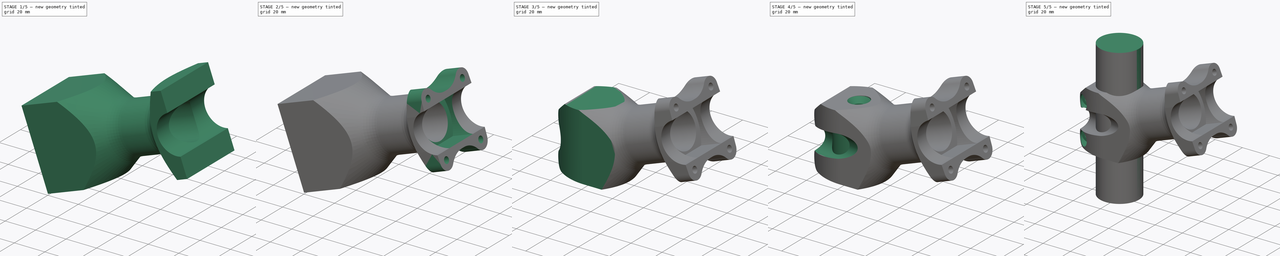
[diagram: build sequence overview — one tinted view per stage of 5, left to right]
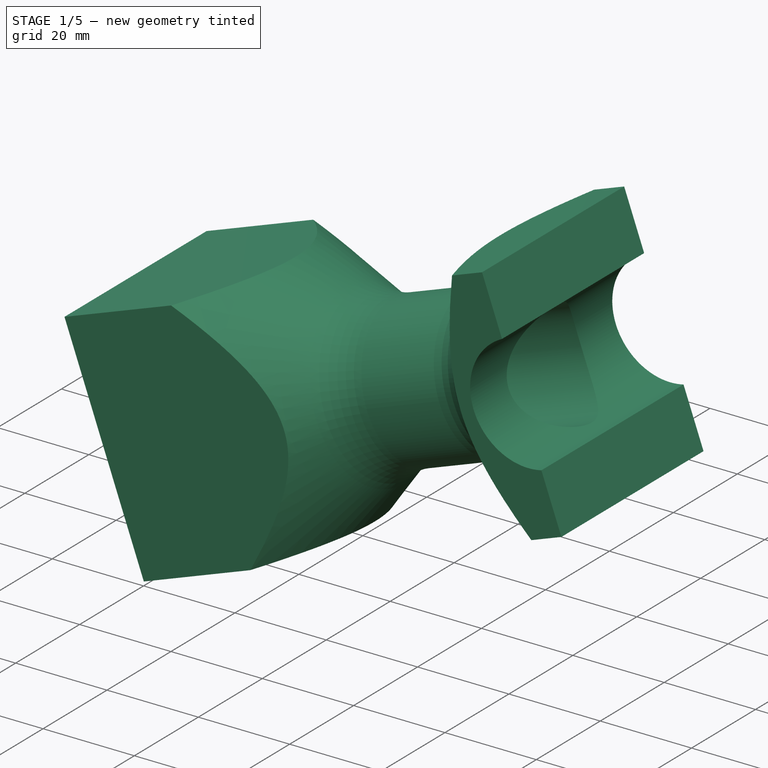
[diagram: stage 1 of 5 — iso view after this stage's code; geometry added in this stage tinted green]
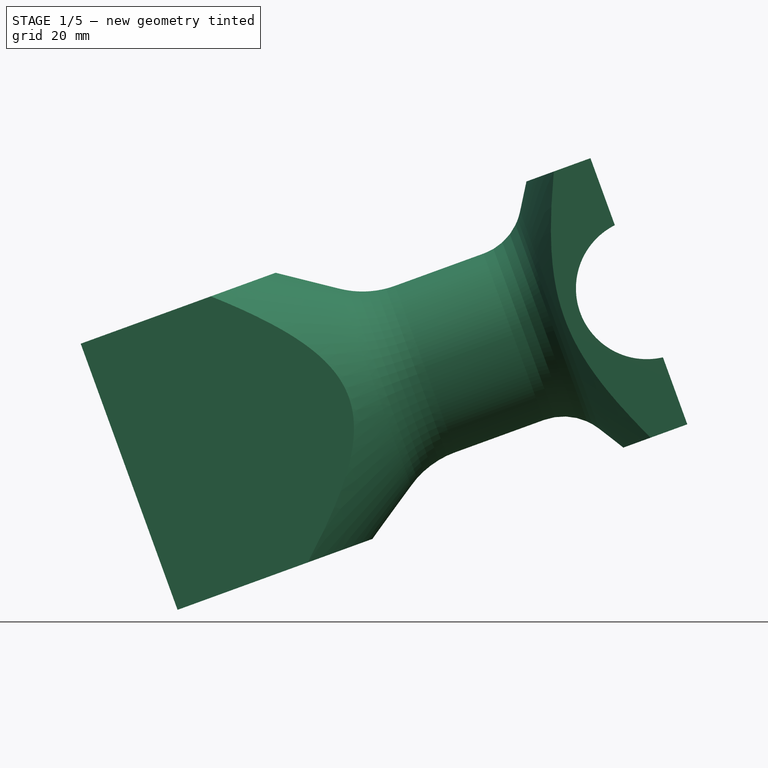
[diagram: stage 1 of 5 — front view after this stage's code; geometry added in this stage tinted green]
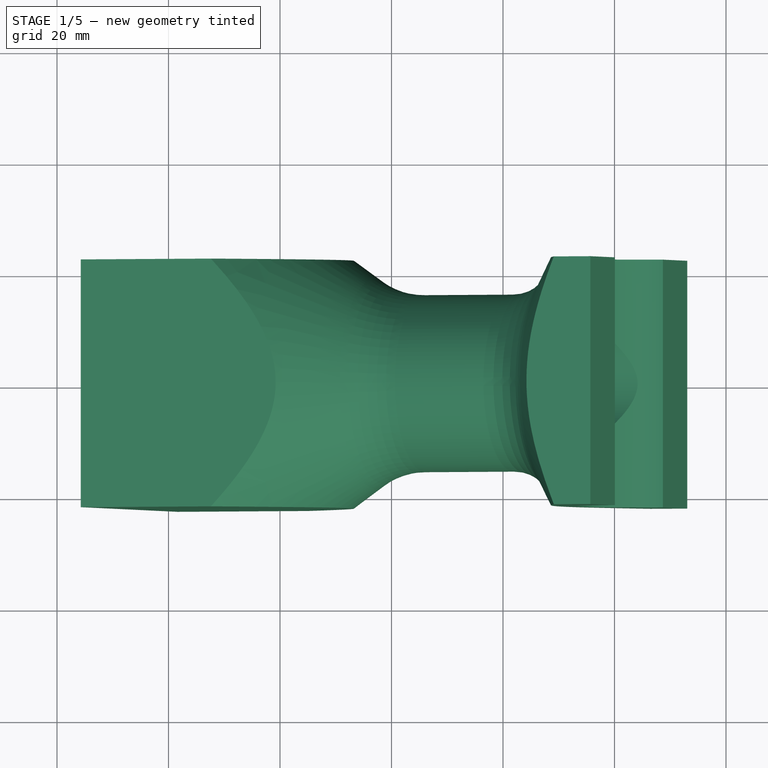
[diagram: stage 1 of 5 — top view after this stage's code; geometry added in this stage tinted green]
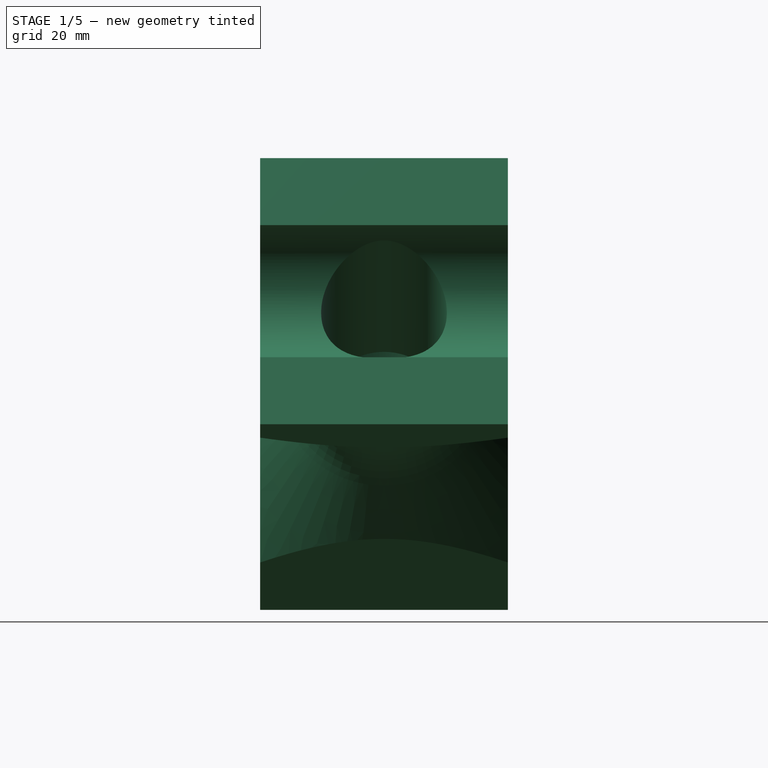
[diagram: stage 1 of 5 — right view after this stage's code; geometry added in this stage tinted green]
FCSTD DOCUMENT  (FreeCAD 0.17R11939 (Git))
Label: stem
License: All rights reserved
LicenseURL: http://en.wikipedia.org/wiki/All_rights_reserved
objects: Sketcher::SketchObject×21, PartDesign::Pocket×14, PartDesign::Mirrored×6, PartDesign::Pad×3, PartDesign::Body×3, App::Part×3, PartDesign::Plane×3, PartDesign::Hole×2, PartDesign::Groove×2, PartDesign::MultiTransform×2, PartDesign::ShapeBinder×1
note: 78 computed .brp shape members not serialized (recipe doc carries the construction recipe); baked Part::Feature solids carry a one-line shape summary decoded from their .brp

FEATURE [PartDesign::Body] Body
  Group = -> [Sketch,Pad]
  Origin = -> Origin
  Tip = -> Pad
FEATURE [App::Part] Part  label="steerer"
  Group = -> [Body]
  License = CC BY 3.0
  LicenseURL = http://creativecommons.org/licenses/by/3.0/
  Origin = -> Origin001
FEATURE [Sketcher::SketchObject] Sketch001
  MapMode = 5
  Placement = pos=(0,0,0) rot=(1,0,0;1.5708rad)
  Support = -> [XZ_Plane003]
  sketch-geometry (2):
    g0: Circle CenterX=65.7785 CenterY=23.9414 CenterZ=0 NormalX=0 NormalY=0 NormalZ=1 Radius=12.7
    g1: LineSegment [constr] StartX=65.7785 StartY=23.9414 StartZ=0 EndX=0 EndY=0 EndZ=0
  constraints (5):
    c: Radius(g0) = 12.7
    c: Distance(g-1,g0) = 70
    c: Coincident(g1,g0)
    c: Coincident(g1,g-1)
    c: Angle(g-1,g1) = 0.349066
FEATURE [PartDesign::Pad] Pad001
  Length = 100
  Length2 = 100
  Midplane = true
  Placement = pos=(0,0,0) rot=(1,0,0;1.5708rad)
  Profile = -> Sketch001
  Type = 0
FEATURE [PartDesign::Body] Body001
  Group = -> [Sketch001,Pad001]
  Origin = -> Origin003
  Tip = -> Pad001
FEATURE [App::Part] Part001  label="handlebar"
  Group = -> [Body001]
  License = CC BY 3.0
  LicenseURL = http://creativecommons.org/licenses/by/3.0/
  Origin = -> Origin002
FEATURE [PartDesign::ShapeBinder] ShapeBinder  label="handlebar_section"
  Placement = pos=(0,0,0) rot=(1,0,0;1.5708rad)
  Support = -> [Pad001]
FEATURE [Sketcher::SketchObject] Sketch002
  ExternalGeometry = -> [ShapeBinder]
  MapMode = 5
  Placement = pos=(0,0,0) rot=(1,0,0;1.5708rad)
  Support = -> [XZ_Plane005]
  sketch-geometry (14):
    g0: LineSegment StartX=-35.7507 StartY=14.0179 StartZ=0 EndX=55.6816 EndY=47.2966 EndZ=0
    g1: LineSegment StartX=55.6816 StartY=47.2966 StartZ=0 EndX=73.0563 EndY=-0.439813 EndZ=0
    g2: LineSegment StartX=73.0563 StartY=-0.439813 StartZ=0 EndX=-18.376 EndY=-33.7184 EndZ=0
    g3: LineSegment StartX=-18.376 StartY=-33.7184 StartZ=0 EndX=-35.7507 EndY=14.0179 EndZ=0
    g4: LineSegment [constr] StartX=0 StartY=0 StartZ=0 EndX=65.7785 EndY=23.9414 EndZ=0
    g5: LineSegment [constr] StartX=14.2875 StartY=-18.6374 StartZ=0 EndX=-14.2875 EndY=-18.6374 EndZ=0
    g6: LineSegment [constr] StartX=-14.2875 StartY=-18.6374 StartZ=0 EndX=-14.2875 EndY=18.6374 EndZ=0
    g7: LineSegment [constr] StartX=14.2875 StartY=-18.6374 StartZ=0 EndX=14.2875 EndY=18.6374 EndZ=0
    g8: LineSegment [constr] StartX=14.2875 StartY=18.6374 StartZ=0 EndX=-14.2875 EndY=18.6374 EndZ=0
    g9: LineSegment [constr] StartX=14.2875 StartY=-8.31483 StartZ=0 EndX=51.3283 EndY=5.16691 EndZ=0
    g10: LineSegment [constr] StartX=14.2875 StartY=18.7153 StartZ=0 EndX=42.641 EndY=29.0351 EndZ=0
    g11: LineSegment [constr] StartX=42.641 StartY=29.0351 StartZ=0 EndX=51.3283 EndY=5.16691 EndZ=0
    g12: GeomPoint X=46.9846 Y=17.101 Z=0
    g13: GeomPoint X=64.3689 Y=23.4284 Z=0
  constraints (42):
    c: Coincident(g0,g1)
    c: Coincident(g1,g2)
    c: Coincident(g2,g3)
    c: Coincident(g3,g0)
    c: Perpendicular(g2,g3)
    c: Perpendicular(g0,g3)
    c: Perpendicular(g1,g2)
    c: Distance(g3) = 50.8
    c: Coincident(g4,g-1)
    c: Parallel(g2,g4)
    c: Horizontal(g5)
    c: Coincident(g6,g5)
    c: Vertical(g6)
    c: Coincident(g7,g5)
    c: Vertical(g7)
    c: Coincident(g8,g7)
    c: Coincident(g8,g6)
    c: Horizontal(g8)
    c: Distance(g8) = 28.575
    c: Symmetric(g6,g7,g-2)
    c: Distance(g5,g2) = 3
    c: Distance(g6,g0) = 3
    c: Distance(g7) = 37.2747
    c: PointOnObject(g9,g7)
    c: PointOnObject(g10,g7)
    c: Coincident(g11,g10)
    c: Coincident(g11,g9)
    c: Parallel(g10,g4)
    c: Parallel(g9,g4)
    c: Perpendicular(g4,g11)
    c: PointOnObject(g12,g11)
    c: Symmetric(g10,g9,g12)
    c: PointOnObject(g12,g4)
    c: Coincident(g4,g-3)
    c: Distance(g11) = 25.4
    c: Symmetric(g1,g0,g4)
    c: Distance(g-1,g12) = 50
    c: Distance(g5,g3) = 9
    c: PointOnObject(g13,g4)
    c: PointOnObject(g13,g1)
    c: Distance(g13,g4) = 1.5
    c: Distance(g0) = 97.3002
FEATURE [PartDesign::Pad] Pad002  label="stock_bar"
  Length = 44.45
  Length2 = 100
  Midplane = true
  Placement = pos=(0,0,0) rot=(1,0,0;1.5708rad)
  Profile = -> Sketch002
  Type = 0
FEATURE [Sketcher::SketchObject] Sketch003
  MapMode = 5
  Placement = pos=(64.3689,0,23.4284) rot=(0.573576,0,0.819152;3.14159rad)
  Support = -> [Pad002]
  sketch-geometry (1):
    g0: Circle CenterX=0 CenterY=0 CenterZ=0 NormalX=0 NormalY=0 NormalZ=1 Radius=2.6743
  constraints (1):
    c: Coincident(g0,g-1)
FEATURE [PartDesign::Hole] Hole
  BaseFeature = -> Pad002
  Depth = 70
  DepthType = 0
  Diameter = 24
  DrillPoint = 1
  DrillPointAngle = 118
  HoleCutCountersinkAngle = 90
  HoleCutDepth = 0
  HoleCutDiameter = 0
  HoleCutType = 0
  ModelActualThread = false
  Placement = pos=(0,0,0) rot=(1,0,0;1.5708rad)
  Profile = -> Sketch003
  Tapered = false
  TaperedAngle = 90
  ThreadAngle = 0
  ThreadClass = 0
  ThreadCutOffInner = 0
  ThreadCutOffOuter = 0
  ThreadDirection = 0
  ThreadFit = 0
  ThreadPitch = 0
  ThreadSize = 0
  ThreadType = 0
  Threaded = false
FEATURE [PartDesign::Plane] DatumPlane
  MapMode = 5
  Placement = pos=(0,0.005,0) rot=(1,0,0;1.5708rad)
  Support = -> [Hole]
  superPlacement = pos=(0,0,-22.23) rot=(0,0,1;0rad)
FEATURE [Sketcher::SketchObject] Sketch004
  ExternalGeometry = -> [Hole,ShapeBinder]
  MapMode = 5
  Placement = pos=(0,0.005,0) rot=(1,0,0;1.5708rad)
  Support = -> [DatumPlane]
  sketch-geometry (13):
    g0: LineSegment StartX=20.6421 StartY=24.4069 StartZ=0 EndX=36.4951 EndY=30.177 EndZ=0
    g1: LineSegment StartX=49.1056 StartY=66.1867 StartZ=0 EndX=-35.4583 EndY=35.4079 EndZ=0
    g2: LineSegment [constr] StartX=0 StartY=0 StartZ=0 EndX=64.3689 EndY=23.4284 EndZ=0
    g3: LineSegment [constr] StartX=53.8444 StartY=19.5978 StartZ=0 EndX=45.1571 EndY=43.4659 EndZ=0
    g4: LineSegment StartX=43.0557 StartY=37.7241 StartZ=0 EndX=49.1056 EndY=66.1867 EndZ=0
    g5: LineSegment StartX=10.6557 StartY=23.8861 StartZ=0 EndX=-35.4583 EndY=35.4079 EndZ=0
    g6: ArcOfCircle CenterX=14.7978 CenterY=40.464 CenterZ=0 NormalX=0 NormalY=0 NormalZ=1 Radius=17.0876 StartAngle=4.46755 EndAngle=5.06145
    g7: ArcOfCircle CenterX=32.9677 CenterY=39.8683 CenterZ=0 NormalX=0 NormalY=0 NormalZ=1 Radius=10.3133 StartAngle=5.06145 EndAngle=6.07375
    g8: LineSegment [constr] StartX=20.6421 StartY=24.4069 StartZ=0 EndX=10.6557 EndY=23.8861 EndZ=0
    g9: LineSegment [constr] StartX=36.4951 StartY=30.177 StartZ=0 EndX=43.0557 EndY=37.7241 EndZ=0
    g10: LineSegment [constr] StartX=56.7675 StartY=44.313 StartZ=0 EndX=-34.6647 EndY=11.0344 EndZ=0
    g11: GeomPoint X=46.243 Y=40.4824 Z=0
    g12: GeomPoint X=43.4239 Y=39.4564 Z=0
  constraints (32):
    c: Coincident(g2,g-1)
    c: Symmetric(g-3,g-3,g2)
    c: Parallel(g-4,g1)
    c: Parallel(g-4,g0)
    c: PointOnObject(g3,g2)
    c: PointOnObject(g3,g-4)
    c: Perpendicular(g-4,g3)
    c: PointOnObject(g3,g-5)
    c: Coincident(g4,g1)
    c: Coincident(g5,g1)
    c: Tangent(g0,g6) = -1.5708
    c: Tangent(g5,g6) = 1.5708
    c: Tangent(g0,g7) = -1.5708
    c: Tangent(g4,g7) = -1.5708
    c: Coincident(g8,g0)
    c: Coincident(g8,g5)
    c: Coincident(g9,g0)
    c: Coincident(g9,g4)
    c: Distance(g8) = 10
    c: Distance(g0,g2) = 15.875
    c: Parallel(g10,g-4)
    c: PointOnObject(g10,g-3)
    c: Distance(g10,g2) = 22.225
    c: Angle(g4,g10) = 2.1293
    c: Distance(g3,g1) = 20
    c: PointOnObject(g11,g10)
    c: PointOnObject(g11,g3)
    c: PointOnObject(g12,g4)
    c: PointOnObject(g12,g10)
    c: Distance(g12,g11) = 3
    c: PointOnObject(g10,g-6)
    c: Distance(g9) = 10
FEATURE [PartDesign::Groove] Groove
  Angle = 360
  Axis = (64.3689,0,23.4284)
  Base = (0,0.005,0)
  BaseFeature = -> Hole
  Placement = pos=(0,0,0) rot=(1,0,0;1.5708rad)
  Profile = -> Sketch004
  ReferenceAxis = -> Sketch004 [Axis0]
FEATURE [Sketcher::SketchObject] Sketch005
  ExternalGeometry = -> [ShapeBinder]
  MapMode = 5
  Placement = pos=(0,0,0) rot=(1,0,0;1.5708rad)
  Support = -> [XZ_Plane005]
  sketch-geometry (1):
    g0: Circle CenterX=65.7785 CenterY=23.9414 CenterZ=0 NormalX=0 NormalY=0 NormalZ=1 Radius=12.7
  constraints (2):
    c: Coincident(g0,g-3)
    c: Equal(g0,g-3)
FEATURE [PartDesign::Pocket] Pocket
  BaseFeature = -> Groove
  Length = 5
  Midplane = true
  Placement = pos=(0,0,0) rot=(1,0,0;1.5708rad)
  Profile = -> Sketch005
  Type = 1
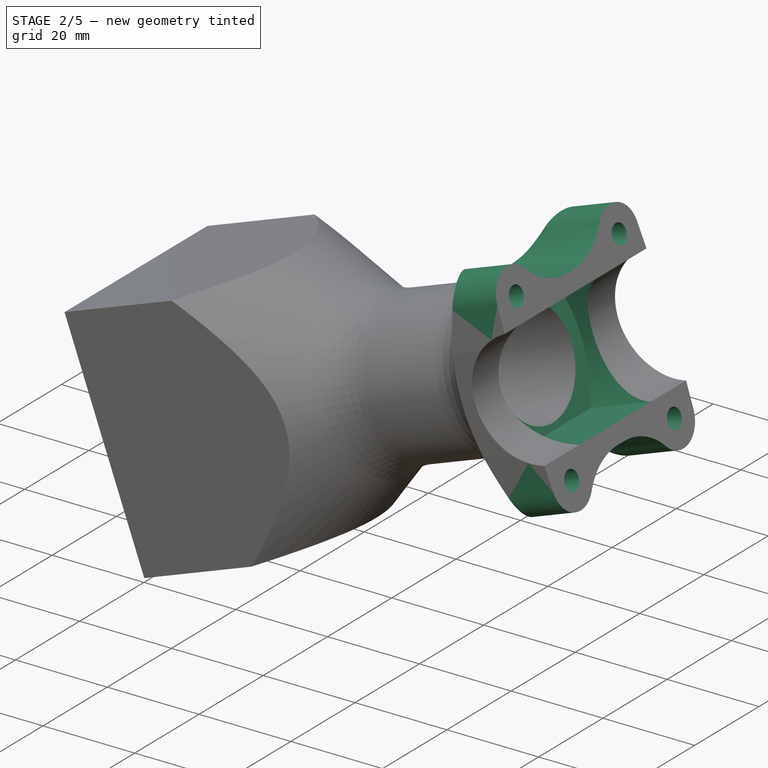
[diagram: stage 2 of 5 — iso view after this stage's code; geometry added in this stage tinted green]
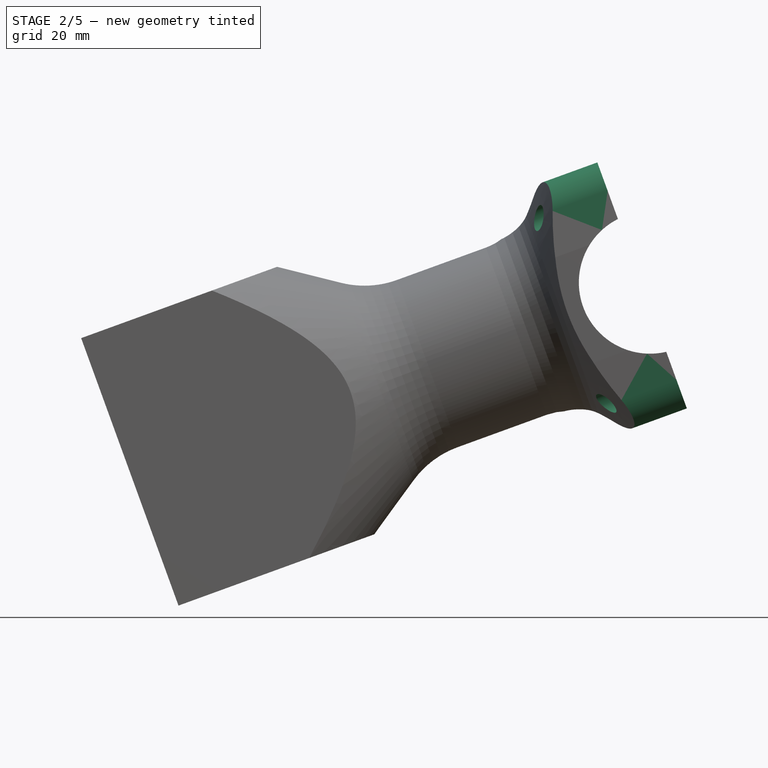
[diagram: stage 2 of 5 — front view after this stage's code; geometry added in this stage tinted green]
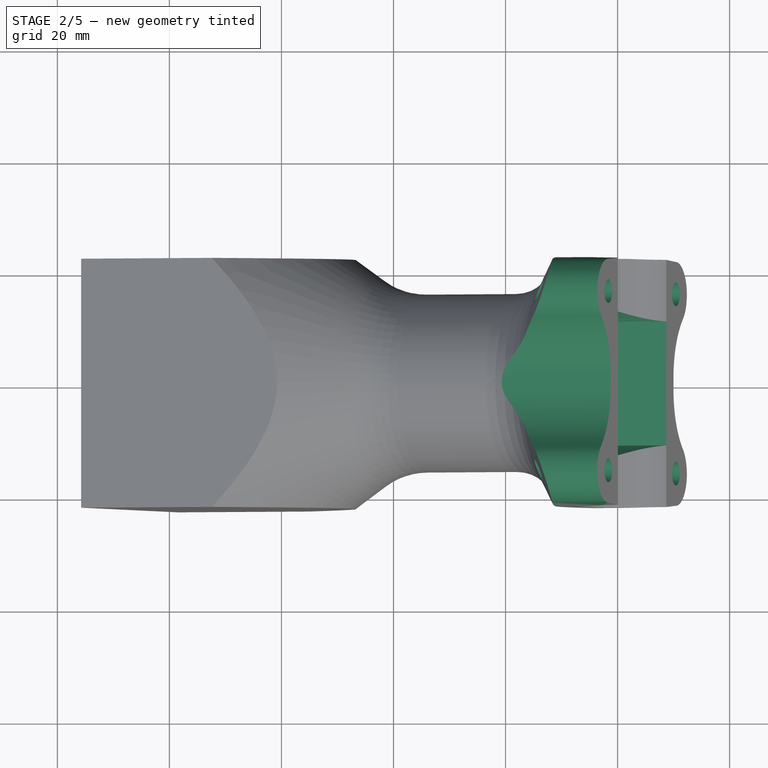
[diagram: stage 2 of 5 — top view after this stage's code; geometry added in this stage tinted green]
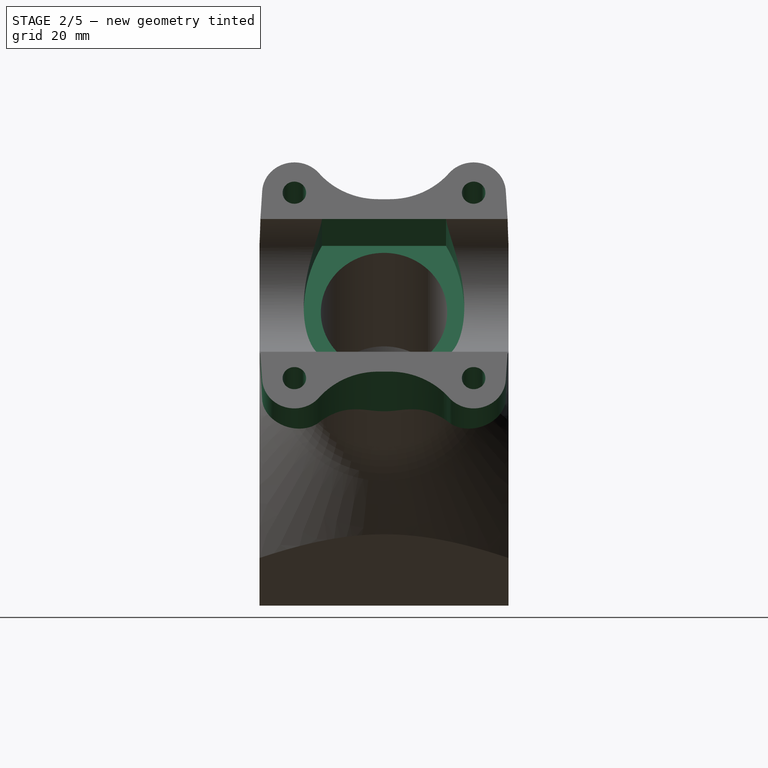
[diagram: stage 2 of 5 — right view after this stage's code; geometry added in this stage tinted green]
FEATURE [Sketcher::SketchObject] Sketch006
  ExternalGeometry = -> [Pocket]
  MapMode = 5
  Placement = pos=(64.3689,0,23.4284) rot=(0.573576,0,0.819152;3.14159rad)
  Support = -> [Pocket]
  sketch-geometry (13):
    g0: LineSegment StartX=10 StartY=22.225 StartZ=0 EndX=10 EndY=32.225 EndZ=0
    g1: LineSegment StartX=10 StartY=32.225 StartZ=0 EndX=40 EndY=32.225 EndZ=0
    g2: LineSegment StartX=40 StartY=32.225 StartZ=0 EndX=40 EndY=0 EndZ=0
    g3: Circle [constr] CenterX=17.6111 CenterY=16 CenterZ=0 NormalX=0 NormalY=0 NormalZ=1 Radius=2.5
    g4: LineSegment [constr] StartX=12.6111 StartY=22.225 StartZ=0 EndX=12.6111 EndY=-22.225 EndZ=0
    g5: LineSegment StartX=10 StartY=22.225 StartZ=0 EndX=17.9612 EndY=21.7393 EndZ=0
    g6: ArcOfCircle CenterX=17.6111 CenterY=16 CenterZ=0 NormalX=0 NormalY=0 NormalZ=1 Radius=5.75 StartAngle=5.41146 EndAngle=7.79305
    g7: LineSegment [constr] StartX=12.6111 StartY=22.225 StartZ=0 EndX=-12.6111 EndY=22.225 EndZ=0
    g8: LineSegment StartX=40 StartY=0 StartZ=0 EndX=16.375 EndY=0 EndZ=0
    g9: ArcOfCircle CenterX=30.2214 CenterY=0.999998 CenterZ=0 NormalX=0 NormalY=0 NormalZ=1 Radius=13.8464 StartAngle=2.26986 EndAngle=3.14159
    g10: Circle [constr] CenterX=0 CenterY=0 CenterZ=0 NormalX=0 NormalY=0 NormalZ=1 Radius=15.875
    g11: LineSegment StartX=16.375 StartY=0 StartZ=0 EndX=16.375 EndY=1 EndZ=0
    g12: LineSegment [constr] StartX=16.375 StartY=0 StartZ=0 EndX=15.875 EndY=0 EndZ=0
  constraints (38):
    c: Vertical(g0)
    c: Coincident(g1,g0)
    c: Horizontal(g1)
    c: Coincident(g2,g1)
    c: Vertical(g2)
    c: Distance(g1) = 30
    c: Distance(g0) = 10
    c: Radius(g3) = 2.5
    c: Distance(g3,g4) = 5
    c: Coincident(g6,g5)
    c: Coincident(g6,g3)
    c: Coincident(g7,g4)
    c: Horizontal(g7)
    c: PointOnObject(g0,g7)
    c: Coincident(g4,g-3)
    c: Coincident(g7,g-7)
    c: Coincident(g0,g5)
    c: Coincident(g4,g-4)
    c: DistanceX(g-2,g0) = 10
    c: Radius(g6) = 5.75
    c: PointOnObject(g2,g-1)
    c: Coincident(g8,g2)
    c: Coincident(g9,g6)
    c: Tangent(g9,g6)
    c: Tangent(g5,g6)
    c: Coincident(g10,g-1)
    c: Radius(g10) = 15.875
    c: Coincident(g11,g8)
    c: Vertical(g11)
    c: Coincident(g9,g11)
    c: Tangent(g9,g11)
    c: Distance(g11) = 1
    c: PointOnObject(g8,g-1)
    c: Coincident(g12,g8)
    c: PointOnObject(g12,g10)
    c: Horizontal(g12)
    c: Distance(g12) = 0.5
    c: DistanceY(g-1,g3) = 16
FEATURE [PartDesign::Pocket] Pocket001  label="face_clamp_profile"
  BaseFeature = -> Pocket
  Length = 30
  Placement = pos=(0,0,0) rot=(1,0,0;1.5708rad)
  Profile = -> Sketch006
  Type = 0
FEATURE [PartDesign::Mirrored] Mirrored
  MirrorPlane = -> Sketch006 [V_Axis]
  Placement = pos=(0,0,0) rot=(1,0,0;1.5708rad)
FEATURE [PartDesign::Mirrored] Mirrored001
  MirrorPlane = -> Sketch006 [H_Axis]
  Placement = pos=(0,0,0) rot=(1,0,0;1.5708rad)
FEATURE [PartDesign::MultiTransform] MultiTransform  label="face_clamp_profile_full"
  BaseFeature = -> Pocket001
  Originals = -> [Pocket001]
  Placement = pos=(0,0,0) rot=(1,0,0;1.5708rad)
  Transformations = -> [Mirrored,Mirrored001]
FEATURE [Sketcher::SketchObject] Sketch007
  ExternalGeometry = -> [MultiTransform]
  MapMode = 5
  Placement = pos=(64.3689,0,23.4284) rot=(0.573576,0,0.819152;3.14159rad)
  Support = -> [MultiTransform]
  sketch-geometry (6):
    g0: ArcOfCircle CenterX=0 CenterY=-11.671 CenterZ=0 NormalX=0 NormalY=0 NormalZ=1 Radius=26 StartAngle=1.06438 EndAngle=2.07721
    g1: LineSegment [constr] StartX=12.6111 StartY=11.0657 StartZ=0 EndX=-12.6111 EndY=11.0657 EndZ=0
    g2: ArcOfCircle CenterX=0 CenterY=11.671 CenterZ=0 NormalX=0 NormalY=0 NormalZ=1 Radius=26 StartAngle=4.20598 EndAngle=5.2188
    g3: LineSegment [constr] StartX=12.6111 StartY=-11.0657 StartZ=0 EndX=-12.6111 EndY=-11.0657 EndZ=0
    g4: LineSegment StartX=12.6111 StartY=-11.0657 StartZ=0 EndX=12.6111 EndY=11.0657 EndZ=0
    g5: LineSegment StartX=-12.6111 StartY=11.0657 StartZ=0 EndX=-12.6111 EndY=-11.0657 EndZ=0
  constraints (19):
    c: PointOnObject(g0,g-4)
    c: PointOnObject(g0,g-3)
    c: Coincident(g1,g0)
    c: Coincident(g1,g0)
    c: Horizontal(g1)
    c: Radius(g0) = 26
    c: Coincident(g3,g2)
    c: Coincident(g3,g2)
    c: Horizontal(g3)
    c: PointOnObject(g3,g-3)
    c: PointOnObject(g2,g-4)
    c: Symmetric(g2,g0,g-1)
    c: Coincident(g4,g2)
    c: Coincident(g4,g0)
    c: Vertical(g4)
    c: Coincident(g5,g0)
    c: Coincident(g5,g2)
    c: Distance(g0,g-3) = 11
    c: Equal(g0,g2)
FEATURE [PartDesign::Pocket] Pocket002  label="inside_relief"
  BaseFeature = -> MultiTransform
  Length = 14
  Placement = pos=(0,0,0) rot=(1,0,0;1.5708rad)
  Profile = -> Sketch007
  Type = 0
FEATURE [Sketcher::SketchObject] Sketch008
  ExternalGeometry = -> [Pocket002]
  MapMode = 5
  Placement = pos=(64.3689,0,23.4284) rot=(0.573576,0,0.819152;3.14159rad)
  Support = -> [Pocket002]
  sketch-geometry (1):
    g0: Circle CenterX=17.6111 CenterY=16 CenterZ=0 NormalX=0 NormalY=0 NormalZ=1 Radius=2.1
  constraints (2):
    c: Radius(g0) = 2.1
    c: Coincident(g0,g-3)
FEATURE [PartDesign::Pocket] Pocket003  label="face_bolt"
  BaseFeature = -> Pocket002
  Length = 15
  Placement = pos=(0,0,0) rot=(1,0,0;1.5708rad)
  Profile = -> Sketch008
  Type = 0
FEATURE [PartDesign::Mirrored] Mirrored002
  MirrorPlane = -> Sketch008 [V_Axis]
  Placement = pos=(0,0,0) rot=(1,0,0;1.5708rad)
FEATURE [PartDesign::Mirrored] Mirrored003
  MirrorPlane = -> Sketch008 [H_Axis]
  Placement = pos=(0,0,0) rot=(1,0,0;1.5708rad)
FEATURE [PartDesign::MultiTransform] MultiTransform001  label="all_face_bolts"
  BaseFeature = -> Pocket003
  Originals = -> [Pocket003]
  Placement = pos=(0,0,0) rot=(1,0,0;1.5708rad)
  Transformations = -> [Mirrored002,Mirrored003]
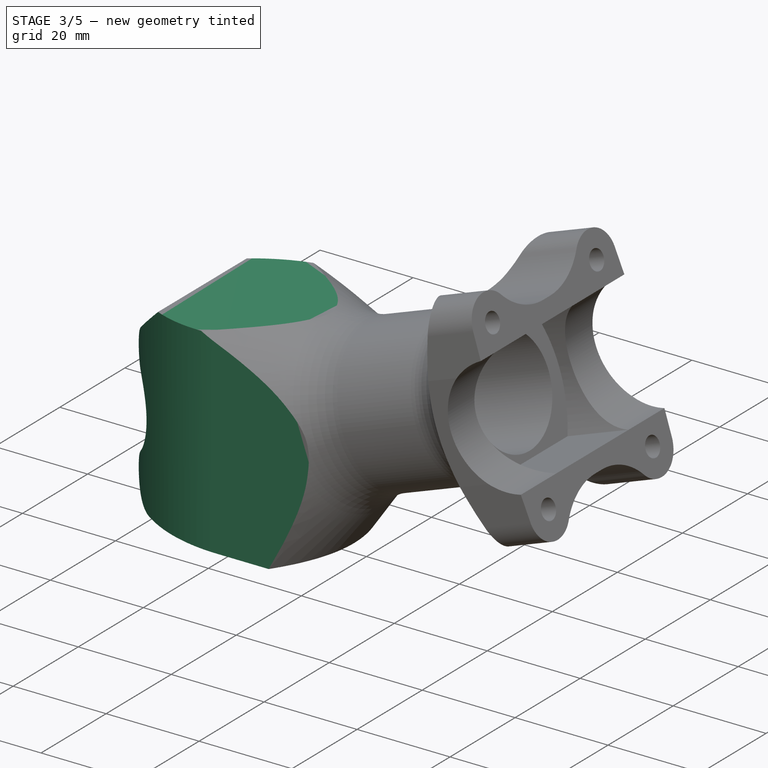
[diagram: stage 3 of 5 — iso view after this stage's code; geometry added in this stage tinted green]
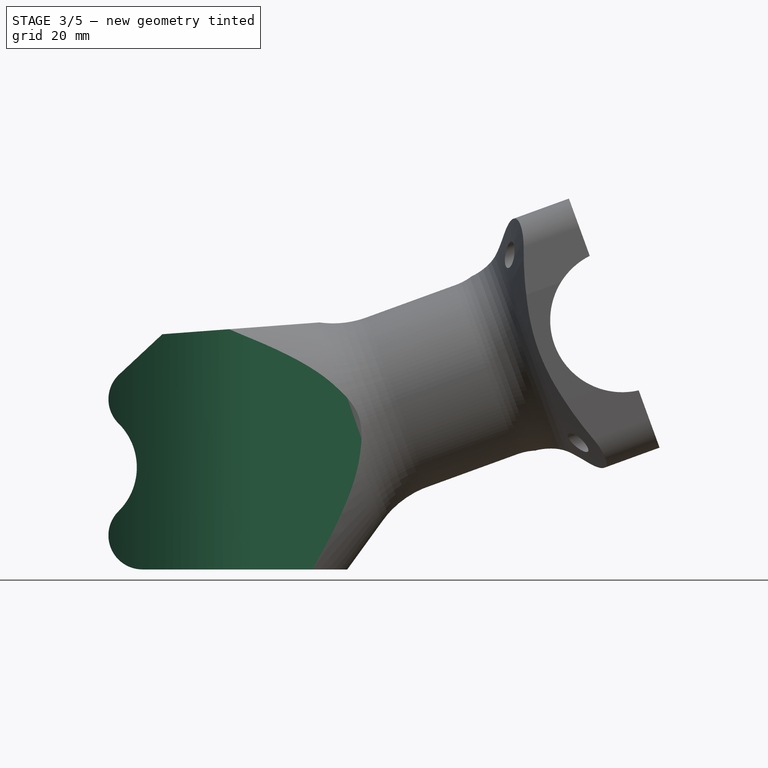
[diagram: stage 3 of 5 — front view after this stage's code; geometry added in this stage tinted green]
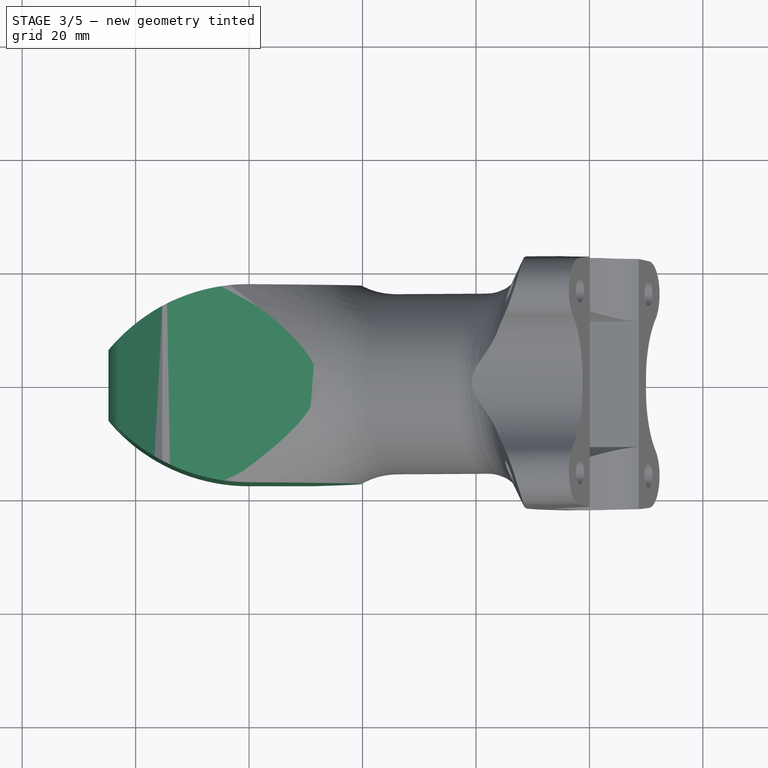
[diagram: stage 3 of 5 — top view after this stage's code; geometry added in this stage tinted green]
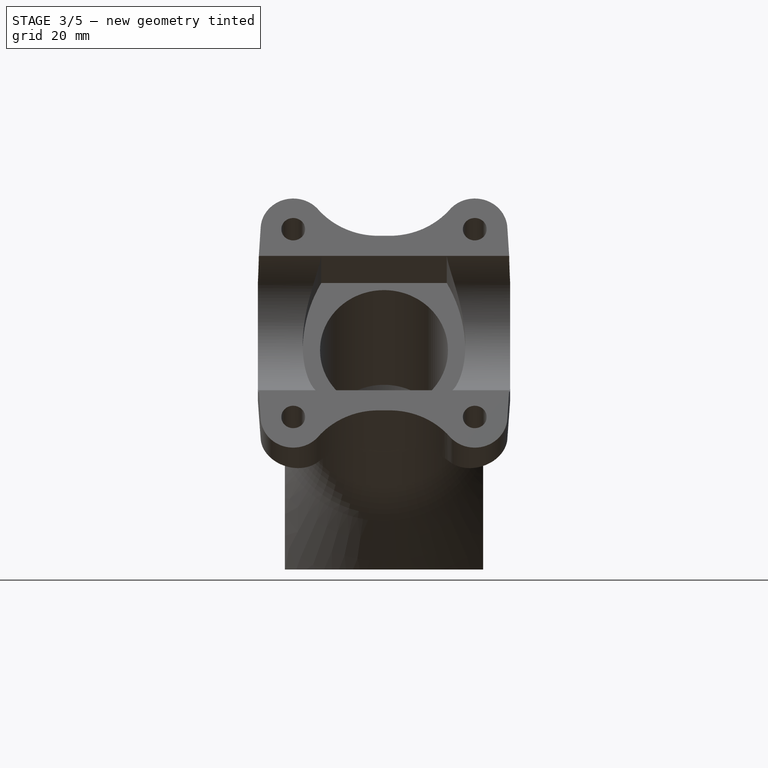
[diagram: stage 3 of 5 — right view after this stage's code; geometry added in this stage tinted green]
FEATURE [Sketcher::SketchObject] Sketch009
  MapMode = 5
  Placement = pos=(0,-22.225,0) rot=(1,0,0;1.5708rad)
  Support = -> [MultiTransform001]
  sketch-geometry (4):
    g0: LineSegment StartX=-50 StartY=-20 StartZ=0 EndX=50 EndY=-20 EndZ=0
    g1: LineSegment StartX=50 StartY=-20 StartZ=0 EndX=50 EndY=-45 EndZ=0
    g2: LineSegment StartX=50 StartY=-45 StartZ=0 EndX=-50 EndY=-45 EndZ=0
    g3: LineSegment StartX=-50 StartY=-45 StartZ=0 EndX=-50 EndY=-20 EndZ=0
  constraints (12):
    c: Horizontal(g0)
    c: Coincident(g1,g0)
    c: Vertical(g1)
    c: Coincident(g2,g1)
    c: Horizontal(g2)
    c: Coincident(g3,g2)
    c: Vertical(g3)
    c: Coincident(g0,g3)
    c: Distance(g-1,g0) = 20
    c: Distance(g2) = 100
    c: Symmetric(g2,g1,g-2)
    c: Distance(g1) = 25
FEATURE [PartDesign::Pocket] Pocket004
  BaseFeature = -> MultiTransform001
  Length = 5
  Placement = pos=(0,0,0) rot=(1,0,0;1.5708rad)
  Profile = -> Sketch009
  Type = 1
FEATURE [Sketcher::SketchObject] Sketch010
  MapMode = 5
  Placement = pos=(0,0,-20) rot=(1,0,0;3.14159rad)
  Support = -> [Pocket004]
  sketch-geometry (18):
    g0: LineSegment StartX=-25.7875 StartY=4.76356 StartZ=0 EndX=-25.7875 EndY=0 EndZ=0
    g1: ArcOfCircle CenterX=1.86828e-05 CenterY=-15.0701 CenterZ=0 NormalX=0 NormalY=0 NormalZ=1 Radius=32.5326 StartAngle=1.5708 EndAngle=2.48597
    g2: LineSegment StartX=-2.5e-11 StartY=17.4625 StartZ=0 EndX=35 EndY=17.4625 EndZ=0
    g3: LineSegment StartX=35 StartY=17.4625 StartZ=0 EndX=35 EndY=32.4625 EndZ=0
    g4: LineSegment StartX=35 StartY=32.4625 StartZ=0 EndX=-40.7875 EndY=32.4625 EndZ=0
    g5: LineSegment StartX=-40.7875 StartY=32.4625 StartZ=0 EndX=-40.7875 EndY=0 EndZ=0
    g6: LineSegment StartX=-40.7875 StartY=0 StartZ=0 EndX=-25.7875 EndY=0 EndZ=0
    g7: Circle [constr] CenterX=0 CenterY=0 CenterZ=0 NormalX=0 NormalY=0 NormalZ=1 Radius=14.2875
    g8: LineSegment [constr] StartX=-21.2875 StartY=9.53095 StartZ=0 EndX=-21.2875 EndY=0 EndZ=0
    g9: LineSegment [constr] StartX=-16.2875 StartY=0 StartZ=0 EndX=-16.2875 EndY=13.0917 EndZ=0
    g10: LineSegment [constr] StartX=-14.2875 StartY=0 StartZ=0 EndX=-16.2875 EndY=0 EndZ=0
    g11: LineSegment [constr] StartX=-23.2875 StartY=11.7166 StartZ=0 EndX=-14.2875 EndY=11.7166 EndZ=0
    g12: LineSegment [constr] StartX=-18.7875 StartY=11.4893 StartZ=0 EndX=-18.7875 EndY=0 EndZ=0
    g13: LineSegment [constr] StartX=-23.2875 StartY=11.7166 StartZ=0 EndX=-23.2875 EndY=6.71658 EndZ=0
    g14: LineSegment [constr] StartX=-23.2875 StartY=6.71658 StartZ=0 EndX=-14.2875 EndY=6.71658 EndZ=0
    g15: LineSegment [constr] StartX=-14.2875 StartY=6.71658 StartZ=0 EndX=-14.2875 EndY=11.7166 EndZ=0
    g16: LineSegment [constr] StartX=-12.93 StartY=6.07843 StartZ=0 EndX=-14.2875 EndY=6.71658 EndZ=0
    g17: LineSegment [constr] StartX=-24.7875 StartY=6 StartZ=0 EndX=-24.7875 EndY=0 EndZ=0
  constraints (57):
    c: Vertical(g0)
    c: Coincident(g1,g0)
    c: PointOnObject(g1,g-2)
    c: Coincident(g2,g1)
    c: Horizontal(g2)
    c: Coincident(g3,g2)
    c: Vertical(g3)
    c: Coincident(g4,g3)
    c: Horizontal(g4)
    c: Coincident(g5,g4)
    c: PointOnObject(g5,g-1)
    c: Vertical(g5)
    c: Coincident(g6,g5)
    c: Coincident(g6,g0)
    c: PointOnObject(g0,g-1)
    c: Tangent(g1,g2)
    c: Distance(g-1,g1) = 17.4625
    c: Coincident(g7,g-1)
    c: Radius(g7) = 14.2875
    c: PointOnObject(g8,g-1)
    c: Vertical(g8)
    c: PointOnObject(g9,g1)
    c: Vertical(g9)
    c: PointOnObject(g8,g1)
    c: PointOnObject(g9,g-1)
    c: Distance(g9,g8) = 5
    c: PointOnObject(g10,g7)
    c: Coincident(g10,g9)
    c: Horizontal(g10)
    c: Distance(g10) = 2
    c: Distance(g2) = 35
    c: Distance(g3) = 15
    c: Distance(g11) = 9
    c: PointOnObject(g12,g1)
    c: PointOnObject(g12,g-1)
    c: Symmetric(g8,g9,g12)
    c: Symmetric(g11,g11,g12)
    c: Coincident(g13,g11)
    c: Vertical(g13)
    c: Distance(g0,g13) = 2.5
    c: Distance(g13) = 5
    c: Coincident(g14,g13)
    c: Horizontal(g14)
    c: Coincident(g15,g14)
    c: Coincident(g15,g11)
    c: Vertical(g15)
    c: Coincident(g16,g14)
    c: PointOnObject(g16,g7)
    c: Perpendicular(g7,g16)
    c: Distance(g16) = 1.5
    c: Distance(g6) = 15
    c: PointOnObject(g17,g1)
    c: PointOnObject(g17,g-1)
    c: Vertical(g17)
    c: DistanceX(g17,g12) = 6
    c: DistanceX(g0,g17) = 1
    c: Distance(g17) = 6
FEATURE [PartDesign::Pocket] Pocket005
  BaseFeature = -> Pocket004
  Length = 5
  Placement = pos=(0,0,0) rot=(1,0,0;1.5708rad)
  Profile = -> Sketch010
  Type = 1
FEATURE [PartDesign::Mirrored] Mirrored004
  BaseFeature = -> Pocket005
  MirrorPlane = -> Sketch010 [H_Axis]
  Originals = -> [Pocket005]
  Placement = pos=(0,0,0) rot=(1,0,0;1.5708rad)
FEATURE [Sketcher::SketchObject] Sketch011
  ExternalGeometry = -> [Mirrored004]
  MapMode = 5
  Placement = pos=(0,-17.4625,0) rot=(1,0,0;1.5708rad)
  Support = -> [Mirrored004]
  sketch-geometry (15):
    g0: ArcOfCircle CenterX=-18.7875 CenterY=-14 CenterZ=0 NormalX=0 NormalY=0 NormalZ=1 Radius=6 StartAngle=2.35201 EndAngle=4.71239
    g1: ArcOfCircle CenterX=-30.6875 CenterY=-2 CenterZ=0 NormalX=0 NormalY=0 NormalZ=1 Radius=10.9 StartAngle=5.4936 EndAngle=7.07277
    g2: ArcOfCircle CenterX=-18.7875 CenterY=10 CenterZ=0 NormalX=0 NormalY=0 NormalZ=1 Radius=6 StartAngle=2.32116 EndAngle=3.93117
    g3: LineSegment StartX=-14.7875 StartY=-20 StartZ=0 EndX=-14.7875 EndY=-30 EndZ=0
    g4: LineSegment StartX=-14.7875 StartY=-30 StartZ=0 EndX=-29.7875 EndY=-30 EndZ=0
    g5: LineSegment StartX=-29.7875 StartY=-30 StartZ=0 EndX=-29.7875 EndY=29.4659 EndZ=0
    g6: LineSegment StartX=-29.7875 StartY=29.4659 StartZ=0 EndX=-15.2875 EndY=29.4659 EndZ=0
    g7: LineSegment StartX=-15.2875 StartY=21.4659 StartZ=0 EndX=-22.8789 EndY=14.3886 EndZ=0
    g8: LineSegment [constr] StartX=-14.2875 StartY=21.8299 StartZ=0 EndX=-14.2875 EndY=-20 EndZ=0
    g9: LineSegment [constr] StartX=-14.2875 StartY=-2 StartZ=0 EndX=-19.7875 EndY=-2 EndZ=0
    g10: LineSegment StartX=-15.2875 StartY=29.4659 StartZ=0 EndX=-15.2875 EndY=21.4659 EndZ=0
    g11: LineSegment StartX=-18.7875 StartY=-20 StartZ=0 EndX=-14.7875 EndY=-20 EndZ=0
    g12: LineSegment [constr] StartX=-24.7875 StartY=10 StartZ=0 EndX=-25.7875 EndY=10 EndZ=0
    g13: LineSegment [constr] StartX=-24.7875 StartY=-14 StartZ=0 EndX=-25.7875 EndY=-14 EndZ=0
    g14: LineSegment [constr] StartX=-7.63324 StartY=24.2518 StartZ=0 EndX=-25.7875 EndY=17.6442 EndZ=0
  constraints (51):
    c: Vertical(g3)
    c: Vertical(g5)
    c: Vertical(g10)
    c: Horizontal(g6)
    c: Horizontal(g9)
    c: Horizontal(g4)
    c: Coincident(g3,g4)
    c: Coincident(g4,g5)
    c: Coincident(g5,g6)
    c: Coincident(g6,g10)
    c: Coincident(g2,g7)
    c: Coincident(g1,g2)
    c: Coincident(g0,g1)
    c: Perpendicular(g1,g9)
    c: PointOnObject(g9,g8)
    c: Equal(g0,g2)
    c: Tangent(g2,g7)
    c: Tangent(g2,g1)
    c: Tangent(g1,g0)
    c: Radius(g0) = 6
    c: Distance(g3) = 10
    c: Distance(g10) = 8
    c: Distance(g9) = 5.5
    c: DistanceY(g0,g2) = 24
    c: PointOnObject(g9,g1)
    c: Distance(g-1,g8) = 14.2875
    c: Distance(g4) = 15
    c: Coincident(g11,g0)
    c: Coincident(g11,g3)
    c: Horizontal(g11)
    c: Tangent(g11,g0)
    c: Distance(g11) = 4
    c: PointOnObject(g12,g2)
    c: Horizontal(g12)
    c: Distance(g12) = 1
    c: Perpendicular(g2,g12)
    c: PointOnObject(g13,g0)
    c: Horizontal(g13)
    c: Perpendicular(g0,g13)
    c: Distance(g13) = 1
    c: PointOnObject(g13,g-4)
    c: PointOnObject(g12,g-4)
    c: PointOnObject(g3,g-3)
    c: Coincident(g14,g-5)
    c: Coincident(g14,g-4)
    c: PointOnObject(g7,g14)
    c: Vertical(g8)
    c: PointOnObject(g8,g-3)
    c: Coincident(g7,g10)
    c: Distance(g7,g8) = 1
    c: PointOnObject(g8,g14)
FEATURE [PartDesign::Pocket] Pocket006
  BaseFeature = -> Mirrored004
  Length = 5
  Placement = pos=(0,0,0) rot=(1,0,0;1.5708rad)
  Profile = -> Sketch011
  Type = 1
FEATURE [Sketcher::SketchObject] Sketch022
  ExternalGeometry = -> [Pocket006]
  MapMode = 5
  Placement = pos=(0,-17.4625,0) rot=(1,0,0;1.5708rad)
  Support = -> [Pocket006]
  sketch-geometry (4):
    g0: LineSegment StartX=19.6928 StartY=24.0925 StartZ=0 EndX=-15.2875 EndY=21.4659 EndZ=0
    g1: LineSegment StartX=-15.2875 StartY=21.4659 StartZ=0 EndX=-15.2875 EndY=34.0925 EndZ=0
    g2: LineSegment StartX=-15.2875 StartY=34.0925 StartZ=0 EndX=19.6928 EndY=34.0925 EndZ=0
    g3: LineSegment StartX=19.6928 StartY=34.0925 StartZ=0 EndX=19.6928 EndY=24.0925 EndZ=0
  constraints (11):
    c: PointOnObject(g0,g-3)
    c: Coincident(g0,g-4)
    c: Coincident(g1,g0)
    c: Vertical(g1)
    c: Coincident(g2,g1)
    c: Horizontal(g2)
    c: Coincident(g3,g2)
    c: Coincident(g3,g0)
    c: Vertical(g3)
    c: Distance(g3) = 10
    c: Distance(g0,g-3) = 1
FEATURE [PartDesign::Pocket] Pocket012
  BaseFeature = -> Pocket006
  Length = 5
  Placement = pos=(0,0,0) rot=(1,0,0;1.5708rad)
  Profile = -> Sketch022
  Type = 1
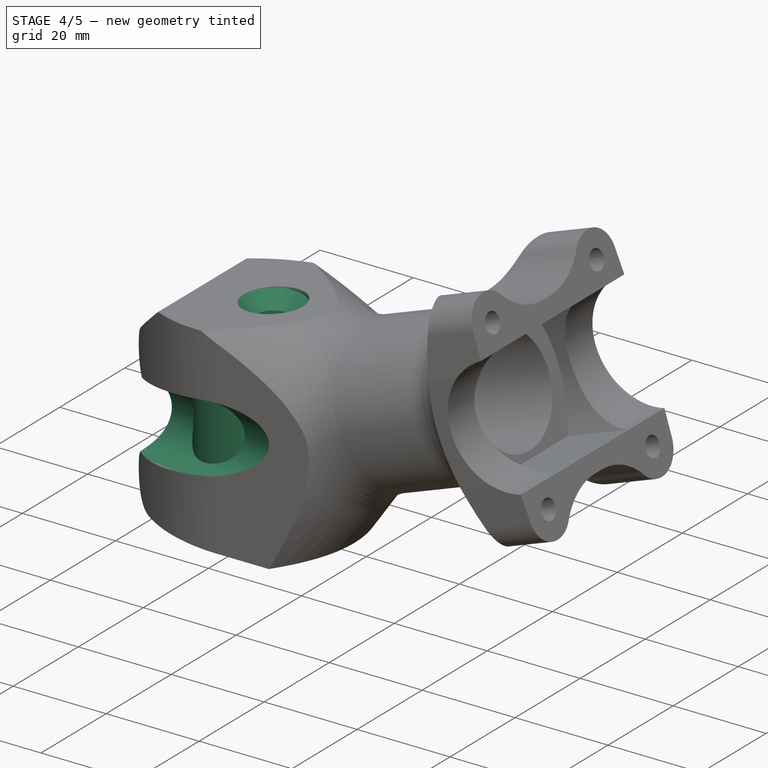
[diagram: stage 4 of 5 — iso view after this stage's code; geometry added in this stage tinted green]
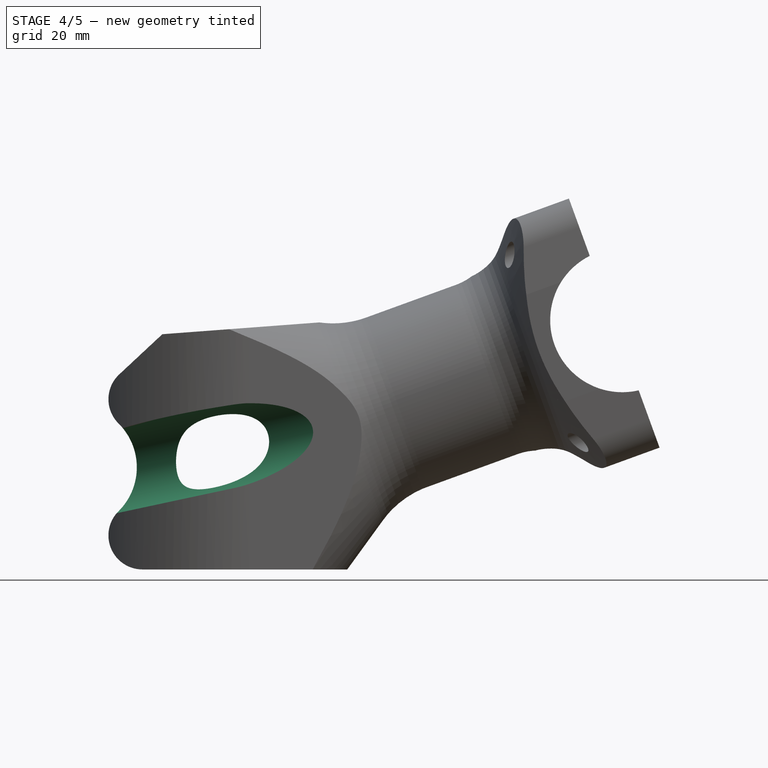
[diagram: stage 4 of 5 — front view after this stage's code; geometry added in this stage tinted green]
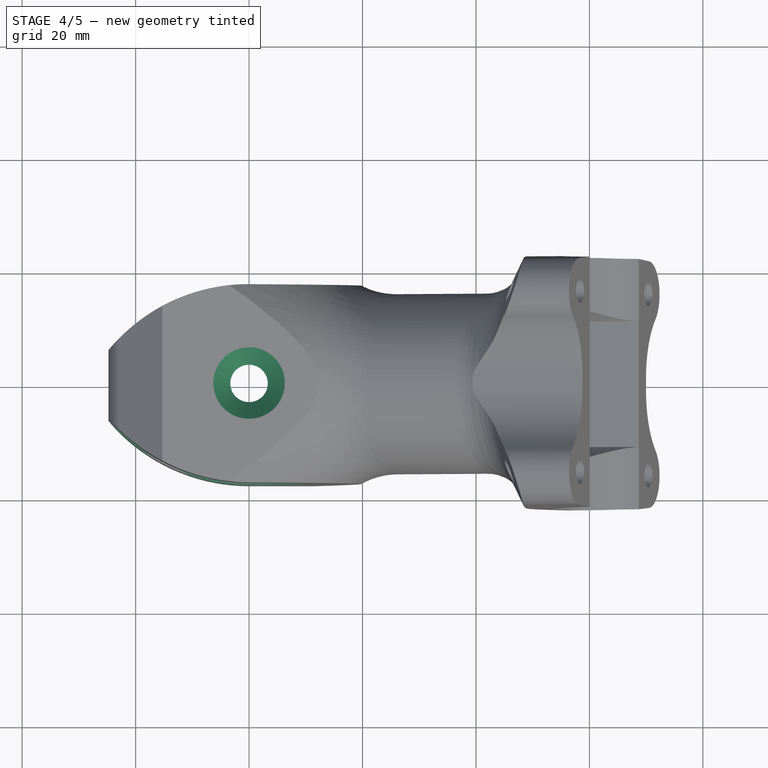
[diagram: stage 4 of 5 — top view after this stage's code; geometry added in this stage tinted green]
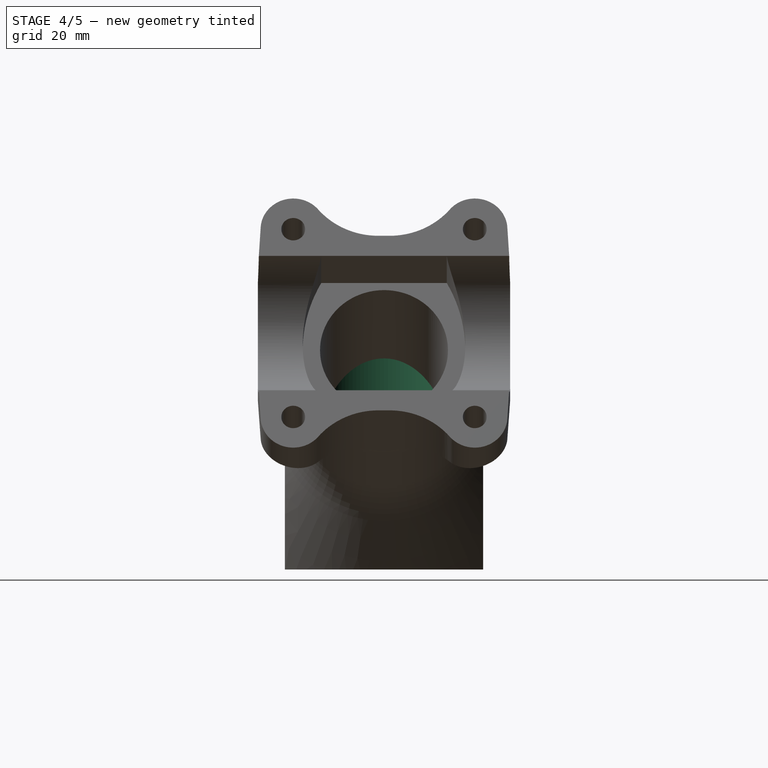
[diagram: stage 4 of 5 — right view after this stage's code; geometry added in this stage tinted green]
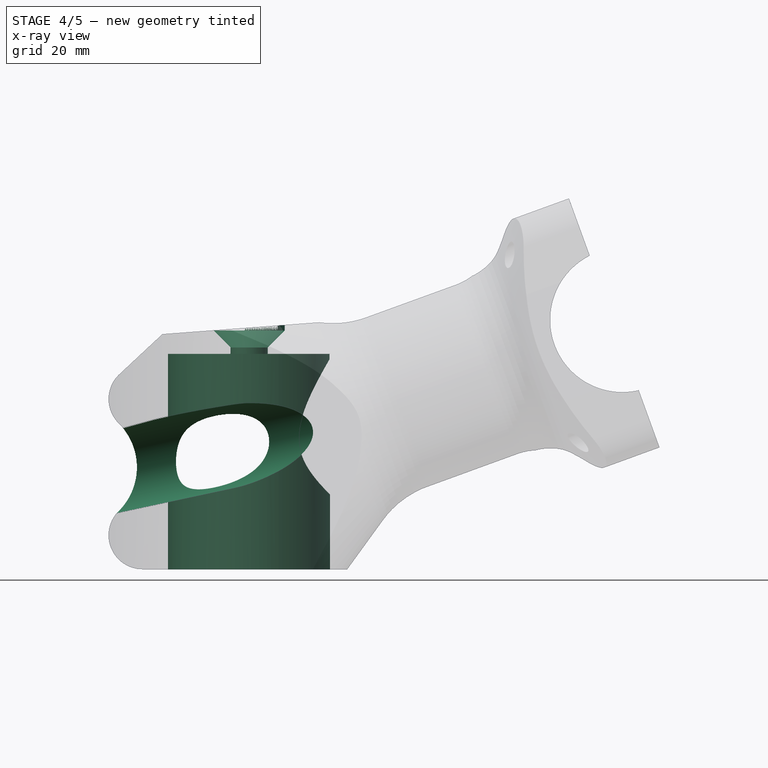
[diagram: stage 4 of 5 — x-ray composite at the front view; earlier geometry ghosted, this stage's added geometry solid]
FEATURE [Sketcher::SketchObject] Sketch012
  MapMode = 5
  Placement = pos=(0,0,-20) rot=(1,0,0;3.14159rad)
  Support = -> [Pocket012]
  sketch-geometry (1):
    g0: Circle CenterX=0 CenterY=0 CenterZ=0 NormalX=0 NormalY=0 NormalZ=1 Radius=14.2875
  constraints (2):
    c: Coincident(g0,g-1)
    c: Radius(g0) = 14.2875
FEATURE [PartDesign::Pocket] Pocket007
  BaseFeature = -> Pocket012
  Length = 38
  Placement = pos=(0,0,0) rot=(1,0,0;1.5708rad)
  Profile = -> Sketch012
  Type = 0
FEATURE [PartDesign::Plane] DatumPlane001
  MapMode = 13
  Placement = pos=(-23.0124,-2.64186,0.579884) rot=(0.441158,-0.692479,-0.570835;2.44401rad)
  Support = -> [Pocket007]
  superPlacement = pos=(0,0,0) rot=(0.396834,-0.913665,0.087976;0.476086rad)
FEATURE [Sketcher::SketchObject] Sketch013
  ExternalGeometry = -> [Pocket007]
  MapMode = 5
  Placement = pos=(-23.0124,-2.64186,0.579884) rot=(-0.441158,0.692479,0.570835;3.83918rad)
  Support = -> [DatumPlane001]
  sketch-geometry (7):
    g0: LineSegment [constr] StartX=4.78867 StartY=4.63889 StartZ=0 EndX=4.78867 EndY=-10.556 EndZ=0
    g1: ArcOfCircle CenterX=6.43628 CenterY=-3.5959 CenterZ=0 NormalX=0 NormalY=0 NormalZ=1 Radius=7.5 StartAngle=1.95103 EndAngle=4.33215
    g2: ArcOfCircle CenterX=5.13729 CenterY=-0.345881 CenterZ=0 NormalX=0 NormalY=0 NormalZ=1 Radius=4 StartAngle=1.65806 EndAngle=1.95103
    g3: ArcOfCircle CenterX=5.13729 CenterY=-6.84592 CenterZ=0 NormalX=0 NormalY=0 NormalZ=1 Radius=4 StartAngle=4.33215 EndAngle=4.62512
    g4: LineSegment StartX=4.78867 StartY=-10.8307 StartZ=0 EndX=9.76964 EndY=-11.2665 EndZ=0
    g5: LineSegment StartX=4.78867 StartY=3.6389 StartZ=0 EndX=9.76964 EndY=4.07468 EndZ=0
    g6: LineSegment StartX=9.76964 StartY=4.07468 StartZ=0 EndX=9.76964 EndY=-11.2665 EndZ=0
  constraints (20):
    c: Coincident(g2,g1)
    c: Coincident(g3,g1)
    c: Tangent(g3,g1)
    c: Tangent(g1,g2)
    c: Equal(g2,g3)
    c: Angle(g0,g5) = 1.65806
    c: Angle(g4,g0) = 1.65806
    c: Tangent(g3,g4)
    c: Tangent(g2,g5)
    c: Radius(g2) = 4
    c: Distance(g5) = 5
    c: Distance(g4) = 5
    c: Coincident(g6,g5)
    c: Coincident(g6,g4)
    c: Coincident(g2,g5)
    c: PointOnObject(g2,g0)
    c: Coincident(g3,g4)
    c: PointOnObject(g3,g0)
    c: Coincident(g0,g-3)
    c: Coincident(g-4,g0)
FEATURE [PartDesign::Pocket] Pocket008
  BaseFeature = -> Pocket007
  Length = 5
  Midplane = true
  Placement = pos=(0,0,0) rot=(1,0,0;1.5708rad)
  Profile = -> Sketch013
  Type = 1
FEATURE [PartDesign::Mirrored] Mirrored005
  BaseFeature = -> Pocket008
  MirrorPlane = -> XZ_Plane005
  Originals = -> [Pocket008]
  Placement = pos=(0,0,0) rot=(1,0,0;1.5708rad)
FEATURE [Sketcher::SketchObject] Sketch015
  MapMode = 5
  Placement = pos=(0,0,18) rot=(1,0,0;3.14159rad)
  Support = -> [Mirrored005]
  sketch-geometry (1):
    g0: Circle CenterX=0 CenterY=0 CenterZ=0 NormalX=0 NormalY=0 NormalZ=1 Radius=2.62577
  constraints (1):
    c: Coincident(g0,g-1)
FEATURE [PartDesign::Hole] Hole001
  BaseFeature = -> Mirrored005
  Depth = 25
  DepthType = 1
  Diameter = 6.6
  DrillPoint = 1
  DrillPointAngle = 118
  HoleCutCountersinkAngle = 90
  HoleCutDepth = 0
  HoleCutDiameter = 6
  HoleCutType = 0
  ModelActualThread = false
  Placement = pos=(0,0,0) rot=(1,0,0;1.5708rad)
  Profile = -> Sketch015
  Tapered = false
  TaperedAngle = 90
  ThreadAngle = 0
  ThreadClass = 0
  ThreadCutOffInner = 0
  ThreadCutOffOuter = 0
  ThreadDirection = 0
  ThreadFit = 0
  ThreadPitch = 0
  ThreadSize = 7
  ThreadType = 1
  Threaded = false
FEATURE [Sketcher::SketchObject] Sketch024
  ExternalGeometry = -> [Hole001]
  MapMode = 5
  Placement = pos=(0,0,0) rot=(1,0,0;1.5708rad)
  Support = -> [XZ_Plane005]
  sketch-geometry (5):
    g0: LineSegment StartX=-3 StartY=18.816 StartZ=0 EndX=-6.3 EndY=22.116 EndZ=0
    g1: LineSegment StartX=-6.3 StartY=22.116 StartZ=0 EndX=-6.3 EndY=24.116 EndZ=0
    g2: LineSegment StartX=-6.3 StartY=24.116 StartZ=0 EndX=-2 EndY=24.116 EndZ=0
    g3: LineSegment StartX=-2 StartY=24.116 StartZ=0 EndX=-2 EndY=18.816 EndZ=0
    g4: LineSegment StartX=-2 StartY=18.816 StartZ=0 EndX=-3 EndY=18.816 EndZ=0
  constraints (15):
    c: Angle(g-3,g0) = 0.785398
    c: Coincident(g1,g0)
    c: Vertical(g1)
    c: Coincident(g2,g1)
    c: Horizontal(g2)
    c: Coincident(g3,g2)
    c: Vertical(g3)
    c: Coincident(g4,g3)
    c: Coincident(g4,g0)
    c: Horizontal(g4)
    c: Distance(g4) = 1
    c: Distance(g1) = 2
    c: DistanceY(g0,g0) = 3.3
    c: DistanceY(g0,g-3) = 0.25
    c: DistanceX(g0,g-1) = 3
FEATURE [PartDesign::Groove] Groove001
  Angle = 360
  Axis = (0,0,1)
  Base = (0,0,0)
  BaseFeature = -> Hole001
  Placement = pos=(0,0,0) rot=(1,0,0;1.5708rad)
  Profile = -> Sketch024
  ReferenceAxis = -> Sketch024 [V_Axis]
  Reversed = true
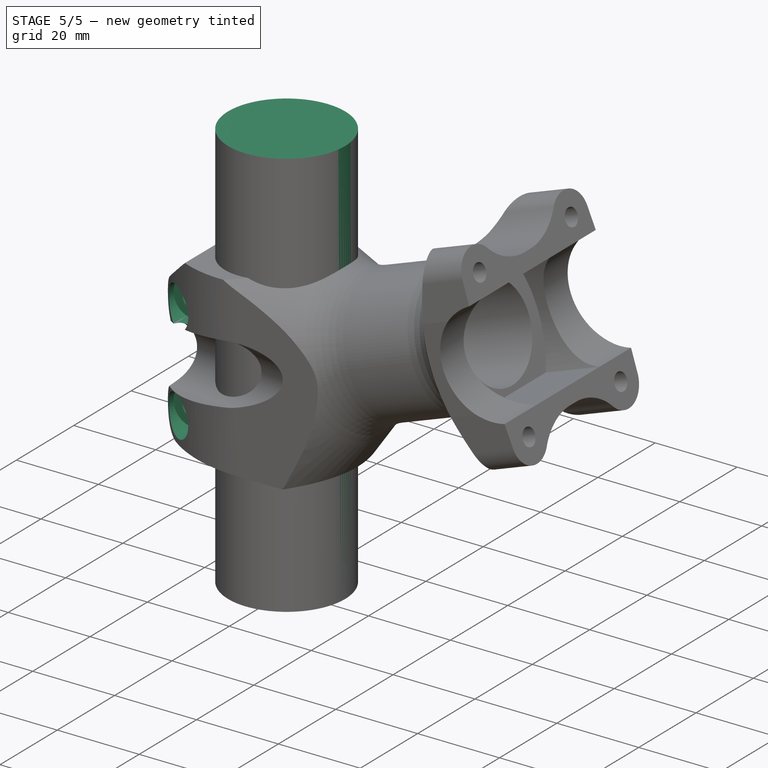
[diagram: stage 5 of 5 — iso view after this stage's code; geometry added in this stage tinted green]
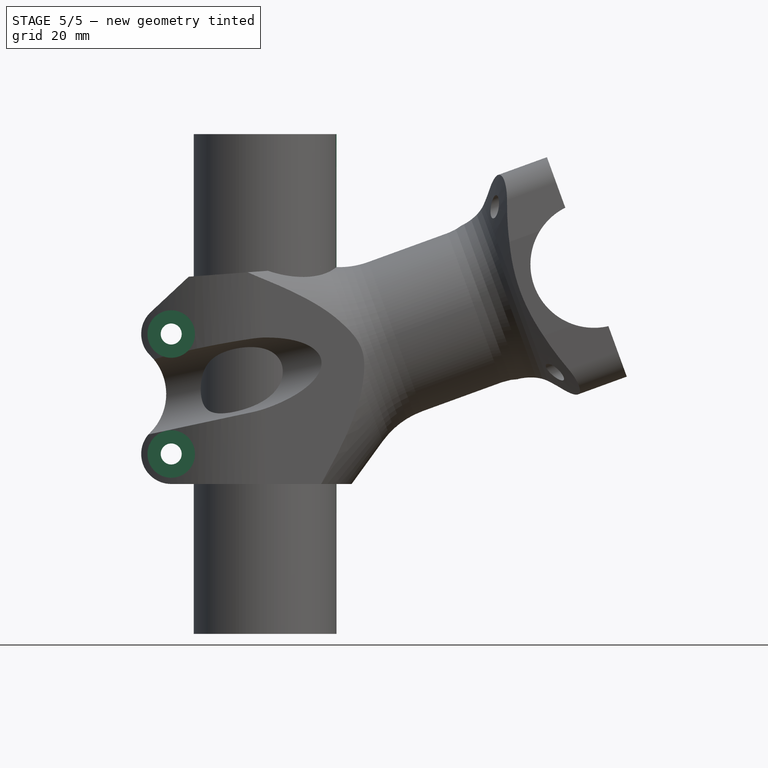
[diagram: stage 5 of 5 — front view after this stage's code; geometry added in this stage tinted green]
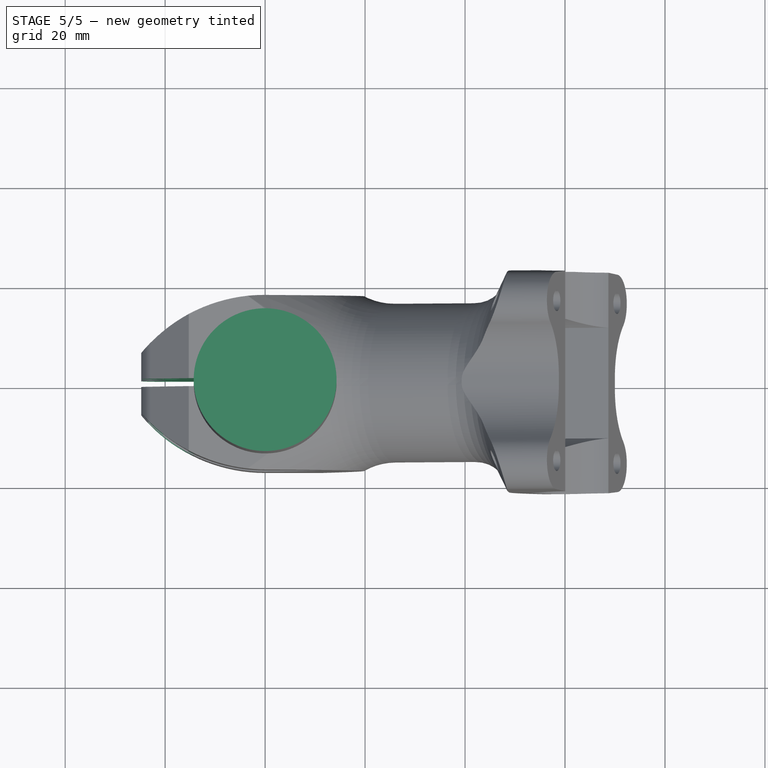
[diagram: stage 5 of 5 — top view after this stage's code; geometry added in this stage tinted green]
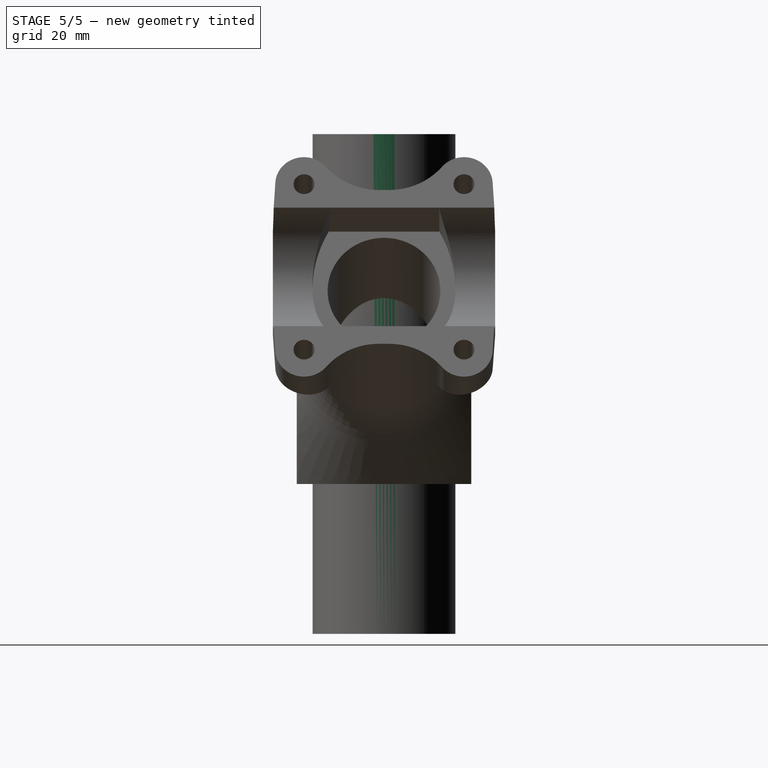
[diagram: stage 5 of 5 — right view after this stage's code; geometry added in this stage tinted green]
FEATURE [Sketcher::SketchObject] Sketch
  MapMode = 5
  Support = -> [XY_Plane]
  sketch-geometry (1):
    g0: Circle CenterX=0 CenterY=0 CenterZ=0 NormalX=0 NormalY=0 NormalZ=1 Radius=14.2875
  constraints (2):
    c: Coincident(g0,g-1)
    c: Radius(g0) = 14.2875
FEATURE [PartDesign::Pad] Pad
  Length = 100
  Length2 = 100
  Midplane = true
  Profile = -> Sketch
  Type = 0
FEATURE [Sketcher::SketchObject] Sketch017
  MapMode = 5
  Placement = pos=(0,0,18) rot=(1,0,0;3.14159rad)
  Support = -> [Groove001]
  sketch-geometry (4):
    g0: LineSegment StartX=0 StartY=0.79375 StartZ=0 EndX=-30 EndY=0.79375 EndZ=0
    g1: LineSegment StartX=-30 StartY=0.79375 StartZ=0 EndX=-30 EndY=-0.79375 EndZ=0
    g2: LineSegment StartX=-30 StartY=-0.79375 StartZ=0 EndX=0 EndY=-0.79375 EndZ=0
    g3: LineSegment StartX=0 StartY=-0.79375 StartZ=0 EndX=0 EndY=0.79375 EndZ=0
  constraints (12):
    c: Coincident(g0,g1)
    c: Coincident(g1,g2)
    c: Coincident(g2,g3)
    c: Coincident(g3,g0)
    c: Horizontal(g0)
    c: Horizontal(g2)
    c: Vertical(g1)
    c: Vertical(g3)
    c: PointOnObject(g0,g-2)
    c: Distance(g1) = 1.5875
    c: Symmetric(g2,g0,g-1)
    c: Distance(g0) = 30
FEATURE [PartDesign::Pocket] Pocket011
  BaseFeature = -> Groove001
  Length = 5
  Midplane = true
  Placement = pos=(0,0,0) rot=(1,0,0;1.5708rad)
  Profile = -> Sketch017
  Type = 1
FEATURE [PartDesign::Plane] DatumPlane002
  MapMode = 5
  Placement = pos=(0,-5.79375,0) rot=(-1,0,0;1.5708rad)
  Support = -> [Pocket011]
  superPlacement = pos=(0,0,-5) rot=(0,0,1;0rad)
FEATURE [Sketcher::SketchObject] Sketch025
  ExternalGeometry = -> [Pocket011]
  MapMode = 5
  Placement = pos=(0,-5.79375,0) rot=(-1,0,0;1.5708rad)
  Support = -> [DatumPlane002]
  sketch-geometry (2):
    g0: Circle CenterX=-18.7875 CenterY=-10 CenterZ=0 NormalX=0 NormalY=0 NormalZ=1 Radius=4.75
    g1: Circle CenterX=-18.7875 CenterY=14 CenterZ=0 NormalX=0 NormalY=0 NormalZ=1 Radius=4.75
  constraints (4):
    c: Coincident(g0,g-3)
    c: Radius(g0) = 4.75
    c: Coincident(g1,g-4)
    c: Equal(g1,g0)
FEATURE [PartDesign::Pocket] Pocket013
  BaseFeature = -> Pocket011
  Length = 5
  Placement = pos=(0,0,0) rot=(1,0,0;1.5708rad)
  Profile = -> Sketch025
  Type = 1
FEATURE [Sketcher::SketchObject] Sketch026
  ExternalGeometry = -> [Pocket013]
  MapMode = 5
  Placement = pos=(0,-5.79375,0) rot=(1,0,0;1.5708rad)
  Support = -> [Pocket013]
  sketch-geometry (2):
    g0: Circle CenterX=-18.7875 CenterY=10 CenterZ=0 NormalX=0 NormalY=0 NormalZ=1 Radius=2.1
    g1: Circle CenterX=-18.7875 CenterY=-14 CenterZ=0 NormalX=0 NormalY=0 NormalZ=1 Radius=2.1
  constraints (4):
    c: Coincident(g0,g-3)
    c: Coincident(g1,g-4)
    c: Equal(g1,g0)
    c: Radius(g0) = 2.1
FEATURE [PartDesign::Pocket] Pocket014
  BaseFeature = -> Pocket013
  Length = 5
  Placement = pos=(0,0,0) rot=(1,0,0;1.5708rad)
  Profile = -> Sketch026
  Type = 1
FEATURE [Sketcher::SketchObject] Sketch027
  ExternalGeometry = -> [Pocket014]
  MapMode = 5
  Placement = pos=(0,-5.79375,0) rot=(1,0,0;1.5708rad)
  Support = -> [Pocket014]
  sketch-geometry (2):
    g0: Circle CenterX=-18.7875 CenterY=10 CenterZ=0 NormalX=0 NormalY=0 NormalZ=1 Radius=2.75
    g1: Circle CenterX=-18.7875 CenterY=-14 CenterZ=0 NormalX=0 NormalY=0 NormalZ=1 Radius=2.75
  constraints (4):
    c: Coincident(g0,g-3)
    c: Coincident(g1,g-4)
    c: Equal(g0,g1)
    c: Radius(g0) = 2.75
FEATURE [PartDesign::Pocket] Pocket015
  BaseFeature = -> Pocket014
  Length = 0
  Placement = pos=(0,0,0) rot=(1,0,0;1.5708rad)
  Profile = -> Sketch027
  Type = 3
  UpToFace = -> Pocket014 [Face3]
FEATURE [PartDesign::Body] Body002
  Group = -> [Sketch002,ShapeBinder,Pad002,Sketch003,Hole,DatumPlane,Sketch004,Groove,Sketch005,Pocket,Sketch006,Pocket001,MultiTransform,Sketch007,Pocket002,Sketch008,Pocket003,MultiTransform001,Sketch009,Pocket004,Sketch010,Pocket005,Mirrored004,Sketch011,Pocket006,Sketch012,Sketch022,Pocket012,Pocket007,DatumPlane001,Sketch013,Pocket008,Mirrored005,Sketch015,Hole001,Sketch024,Groove001,Sketch017,Pocket011,+7 more]
  Origin = -> Origin005
  Tip = -> Pocket015
FEATURE [App::Part] Part002  label="stem_body"
  Group = -> [Body002]
  License = CC BY 3.0
  LicenseURL = http://creativecommons.org/licenses/by/3.0/
  Origin = -> Origin004
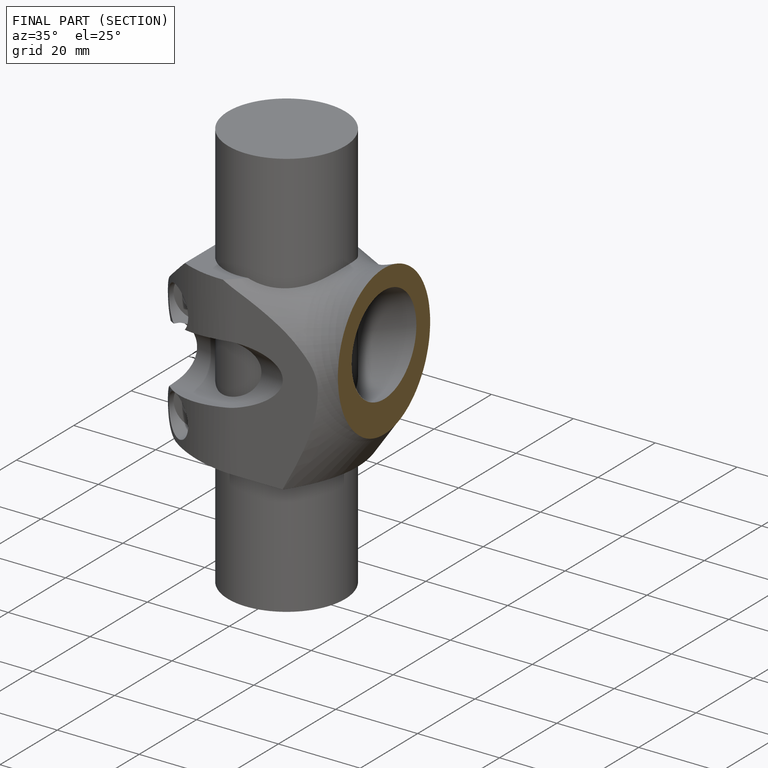
[diagram: finished part — half-section view (interior)]
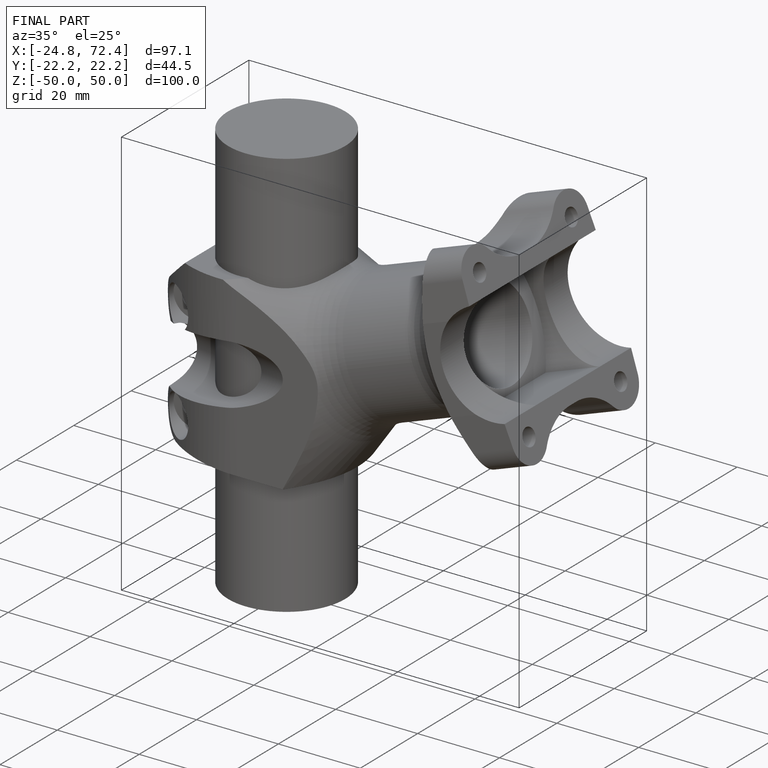
[diagram: finished part — iso view with bounding-box wireframe]
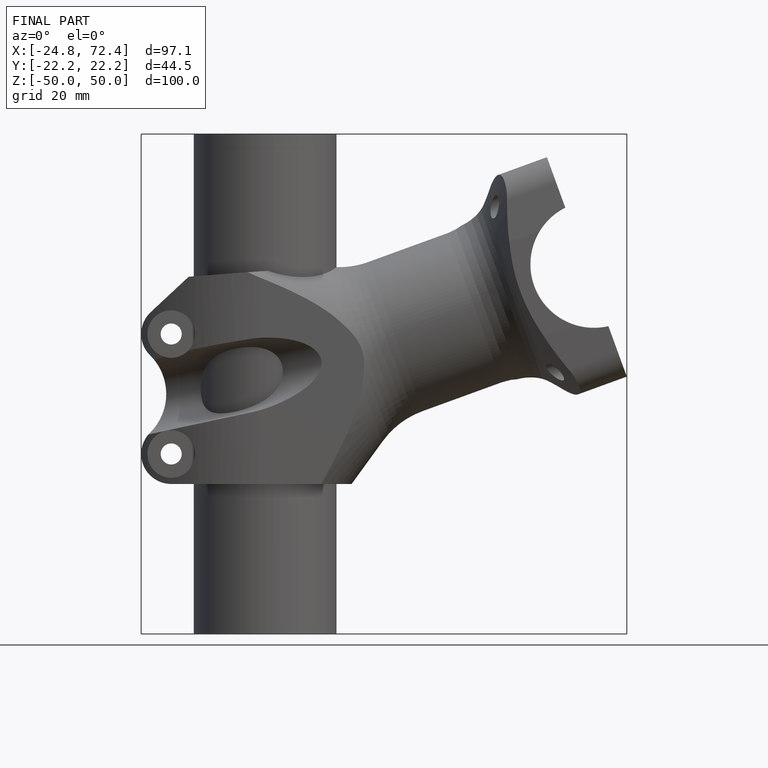
[diagram: finished part — front view with bounding-box wireframe]
